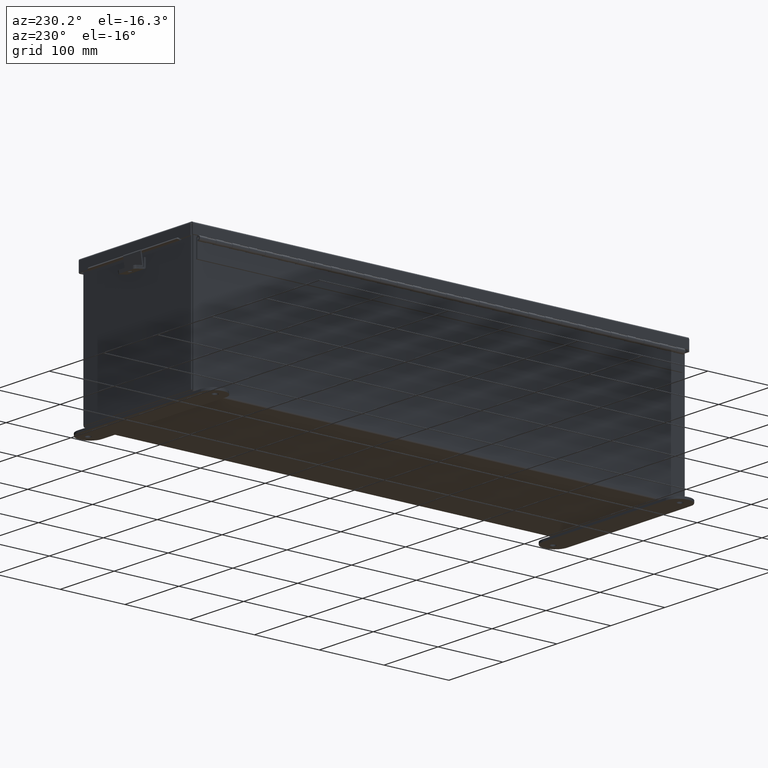
[diagram: clean part render]
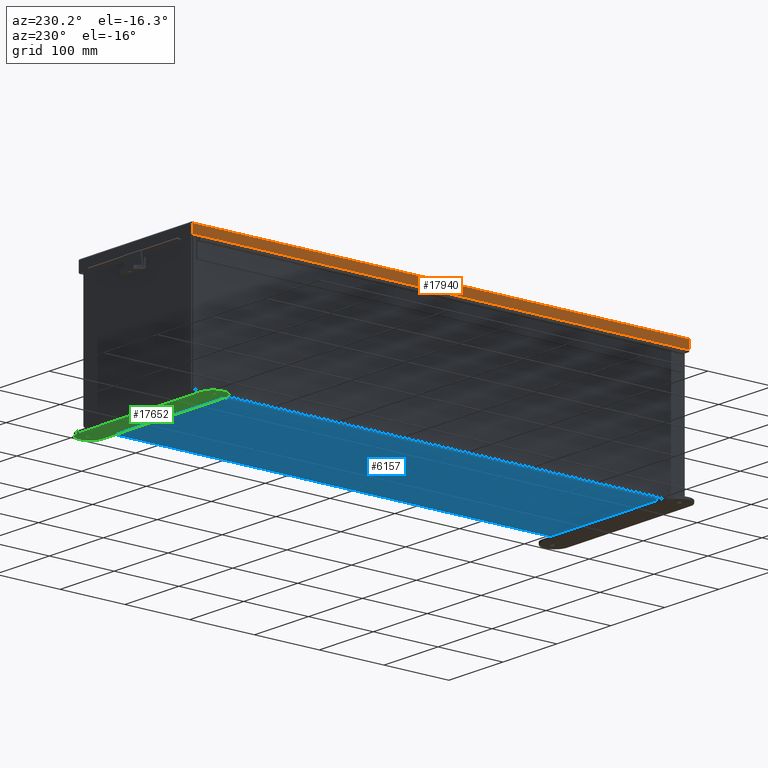
[diagram: same view with three faces highlighted in distinct colors, each labeled with its STEP entity id]
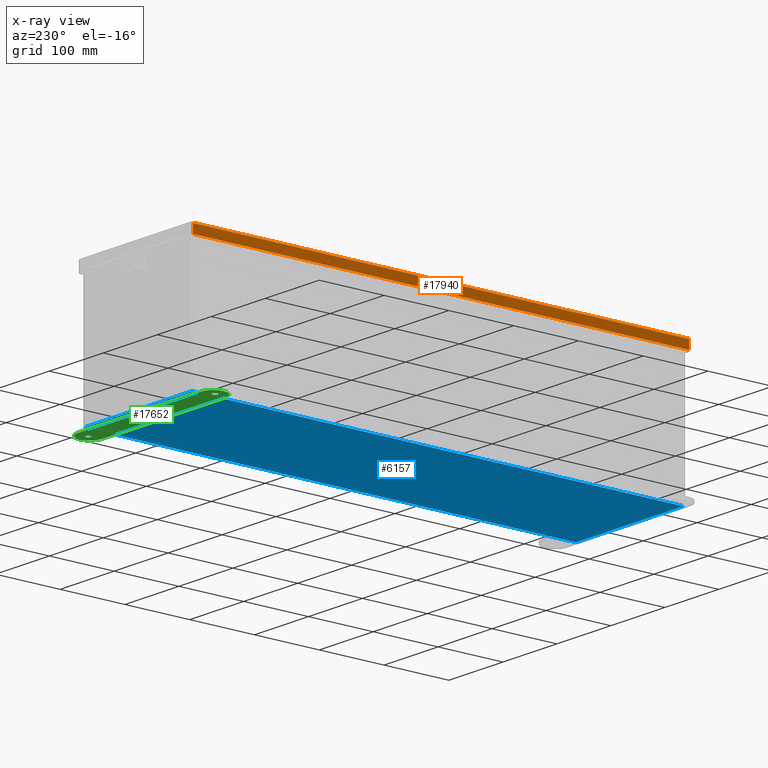
[diagram: x-ray of the same camera — body ghosted, the three highlighted faces saturated]
A machine part, auxiliary view with three faces highlighted in distinct colors.
The next image is the same camera in x-ray (body ghosted, the three faces saturated) — at least one of them is partly hidden behind the body in this view.
Their STEP definitions:

[orange] entity #17940 — the highlighted planar face has unit normal (1, -0, 0).
#395 = CARTESIAN_POINT ( 'NONE',  ( 4.156250000000014200, -15.07447893218816200, 0.01300000000000010700 ) ) ;
#506 = DIRECTION ( 'NONE',  ( -1.235011063668327800E-029, -1.000000000000000000, -6.034785924940740300E-029 ) ) ;
#849 = CARTESIAN_POINT ( 'NONE',  ( 4.156250000000021300, -15.07447893218816000, 0.5503000000000010100 ) ) ;
#851 = FACE_OUTER_BOUND ( 'NONE', #12337, .T. ) ;
#1150 = VERTEX_POINT ( 'NONE', #395 ) ;
#3848 = LINE ( 'NONE', #5018, #11658 ) ;
#4127 = DIRECTION ( 'NONE',  ( 3.971430846686186800E-015, 6.022459973296638500E-029, 1.000000000000000000 ) ) ;
#5018 = CARTESIAN_POINT ( 'NONE',  ( 4.156250000000014200, -15.15625000000002500, 0.01300000000000010700 ) ) ;
#7528 = DIRECTION ( 'NONE',  ( 3.971430846686186800E-015, 6.022459973296637300E-029, 1.000000000000000000 ) ) ;
#7607 = VECTOR ( 'NONE', #19994, 39.37007874015748100 ) ;
#8216 = ORIENTED_EDGE ( 'NONE', *, *, #16933, .T. ) ;
#9397 = VERTEX_POINT ( 'NONE', #17868 ) ;
#9565 = ORIENTED_EDGE ( 'NONE', *, *, #16741, .F. ) ;
#11658 = VECTOR ( 'NONE', #506, 39.37007874015748100 ) ;
#12311 = LINE ( 'NONE', #19956, #7607 ) ;
#12337 = EDGE_LOOP ( 'NONE', ( #9565, #8216, #24992, #12559 ) ) ;
#12559 = ORIENTED_EDGE ( 'NONE', *, *, #16825, .F. ) ;
#15993 = VECTOR ( 'NONE', #17571, 39.37007874015748100 ) ;
#16741 = EDGE_CURVE ( 'NONE', #9397, #1150, #3848, .T. ) ;
#16825 = EDGE_CURVE ( 'NONE', #1150, #21732, #20115, .T. ) ;
#16933 = EDGE_CURVE ( 'NONE', #9397, #20215, #23867, .T. ) ;
#16976 = EDGE_CURVE ( 'NONE', #20215, #21732, #12311, .T. ) ;
#17571 = DIRECTION ( 'NONE',  ( 3.971430846686186800E-015, 6.022459973296638500E-029, 1.000000000000000000 ) ) ;
#17791 = CARTESIAN_POINT ( 'NONE',  ( 4.156250000000014200, -15.07447893218816000, 0.0000000000000000000 ) ) ;
#17868 = CARTESIAN_POINT ( 'NONE',  ( 4.156250000000014200, 15.07447893218810500, 0.01300000000000010700 ) ) ;
#17940 = ADVANCED_FACE ( 'NONE', ( #851 ), #20260, .F. ) ;
#17978 = CARTESIAN_POINT ( 'NONE',  ( 4.156250000000021300, 15.07447893218810500, 0.5502999999999999000 ) ) ;
#18592 = AXIS2_PLACEMENT_3D ( 'NONE', #24273, #19466, #7528 ) ;
#18874 = CARTESIAN_POINT ( 'NONE',  ( 4.156250000000014200, 15.07447893218810500, -1.639108796198557900E-014 ) ) ;
#19466 = DIRECTION ( 'NONE',  ( -1.000000000000000000, -1.286555557391726600E-029, 3.971430846686186800E-015 ) ) ;
#19956 = CARTESIAN_POINT ( 'NONE',  ( 4.156250000000021300, 1.067128122525102800E-018, 0.5502999999999999000 ) ) ;
#19994 = DIRECTION ( 'NONE',  ( -1.235011063668327800E-029, -1.000000000000000000, -6.034785924940740300E-029 ) ) ;
#20115 = LINE ( 'NONE', #17791, #15993 ) ;
#20215 = VERTEX_POINT ( 'NONE', #17978 ) ;
#20260 = PLANE ( 'NONE',  #18592 ) ;
#21078 = VECTOR ( 'NONE', #4127, 39.37007874015748100 ) ;
#21732 = VERTEX_POINT ( 'NONE', #849 ) ;
#23867 = LINE ( 'NONE', #18874, #21078 ) ;
#24273 = CARTESIAN_POINT ( 'NONE',  ( 4.156250000000014200, 5.869204673888065100E-018, -1.748382715945128500E-014 ) ) ;
#24992 = ORIENTED_EDGE ( 'NONE', *, *, #16976, .T. ) ;

[blue] entity #6157 — the highlighted planar face has unit normal (0, 0, -1).
#33 = LINE ( 'NONE', #22793, #24389 ) ;
#286 = EDGE_LOOP ( 'NONE', ( #6733, #1319, #24756, #17747 ) ) ;
#662 = VECTOR ( 'NONE', #24526, 39.37007874015748100 ) ;
#885 = VERTEX_POINT ( 'NONE', #19577 ) ;
#1319 = ORIENTED_EDGE ( 'NONE', *, *, #22623, .T. ) ;
#3667 = CARTESIAN_POINT ( 'NONE',  ( 0.0000000000000000000, 0.0000000000000000000, -0.07470000000000000300 ) ) ;
#3780 = PLANE ( 'NONE',  #9256 ) ;
#4120 = VERTEX_POINT ( 'NONE', #24719 ) ;
#5991 = LINE ( 'NONE', #7638, #16534 ) ;
#6157 = ADVANCED_FACE ( 'NONE', ( #20437 ), #3780, .T. ) ;
#6733 = ORIENTED_EDGE ( 'NONE', *, *, #22582, .F. ) ;
#7638 = CARTESIAN_POINT ( 'NONE',  ( -3.912300000000000100, -14.92530000000000200, -0.07469999999999966900 ) ) ;
#7856 = VERTEX_POINT ( 'NONE', #17435 ) ;
#8730 = LINE ( 'NONE', #16435, #14061 ) ;
#9256 = AXIS2_PLACEMENT_3D ( 'NONE', #3667, #10772, #14609 ) ;
#9456 = CARTESIAN_POINT ( 'NONE',  ( -4.000000000000000900, -14.92530000000000200, -0.07470000000000000300 ) ) ;
#10772 = DIRECTION ( 'NONE',  ( 0.0000000000000000000, 0.0000000000000000000, -1.000000000000000000 ) ) ;
#12823 = VERTEX_POINT ( 'NONE', #23384 ) ;
#14061 = VECTOR ( 'NONE', #22538, 39.37007874015748100 ) ;
#14609 = DIRECTION ( 'NONE',  ( -1.000000000000000000, 0.0000000000000000000, -0.0000000000000000000 ) ) ;
#16435 = CARTESIAN_POINT ( 'NONE',  ( 3.912299999999999200, 14.92529999999999800, -0.07470000000000048800 ) ) ;
#16534 = VECTOR ( 'NONE', #24706, 39.37007874015748100 ) ;
#17435 = CARTESIAN_POINT ( 'NONE',  ( -3.912300000000000100, 14.92529999999999800, -0.07470000000000000300 ) ) ;
#17747 = ORIENTED_EDGE ( 'NONE', *, *, #22691, .T. ) ;
#19577 = CARTESIAN_POINT ( 'NONE',  ( -3.912300000000000100, -14.92529999999999800, -0.07469999999999966900 ) ) ;
#20437 = FACE_OUTER_BOUND ( 'NONE', #286, .T. ) ;
#22538 = DIRECTION ( 'NONE',  ( -0.0000000000000000000, -1.000000000000000000, -0.0000000000000000000 ) ) ;
#22553 = LINE ( 'NONE', #9456, #662 ) ;
#22582 = EDGE_CURVE ( 'NONE', #12823, #7856, #33, .T. ) ;
#22623 = EDGE_CURVE ( 'NONE', #12823, #4120, #8730, .T. ) ;
#22688 = EDGE_CURVE ( 'NONE', #885, #4120, #22553, .T. ) ;
#22691 = EDGE_CURVE ( 'NONE', #885, #7856, #5991, .T. ) ;
#22793 = CARTESIAN_POINT ( 'NONE',  ( -4.000000000000000900, 14.92529999999999800, -0.07470000000000000300 ) ) ;
#23384 = CARTESIAN_POINT ( 'NONE',  ( 3.912299999999999200, 14.92529999999999600, -0.07470000000000048800 ) ) ;
#24389 = VECTOR ( 'NONE', #25869, 39.37007874015748100 ) ;
#24526 = DIRECTION ( 'NONE',  ( 1.000000000000000000, 0.0000000000000000000, 0.0000000000000000000 ) ) ;
#24706 = DIRECTION ( 'NONE',  ( -0.0000000000000000000, 1.000000000000000000, -0.0000000000000000000 ) ) ;
#24719 = CARTESIAN_POINT ( 'NONE',  ( 3.912299999999999200, -14.92530000000000200, -0.07470000000000000300 ) ) ;
#24756 = ORIENTED_EDGE ( 'NONE', *, *, #22688, .F. ) ;
#25869 = DIRECTION ( 'NONE',  ( -1.000000000000000000, -0.0000000000000000000, -0.0000000000000000000 ) ) ;

[green] entity #17652 — the highlighted planar face has unit normal (0, 0, 1).
#24 = DIRECTION ( 'NONE',  ( 0.0000000000000000000, 0.0000000000000000000, -1.000000000000000000 ) ) ;
#83 = EDGE_CURVE ( 'NONE', #2448, #1467, #21524, .T. ) ;
#158 = CARTESIAN_POINT ( 'NONE',  ( 4.499999999999999100, 1.162094064949613600, 0.0000000000000000000 ) ) ;
#485 = AXIS2_PLACEMENT_3D ( 'NONE', #7346, #14068, #24052 ) ;
#772 = EDGE_CURVE ( 'NONE', #24703, #1525, #18986, .T. ) ;
#807 = PLANE ( 'NONE',  #1285 ) ;
#1134 = AXIS2_PLACEMENT_3D ( 'NONE', #23651, #10969, #23872 ) ;
#1272 = EDGE_LOOP ( 'NONE', ( #21929, #17913 ) ) ;
#1285 = AXIS2_PLACEMENT_3D ( 'NONE', #4061, #4717, #17735 ) ;
#1467 = VERTEX_POINT ( 'NONE', #21012 ) ;
#1515 = DIRECTION ( 'NONE',  ( -1.000000000000000000, 0.0000000000000000000, 0.0000000000000000000 ) ) ;
#1525 = VERTEX_POINT ( 'NONE', #17297 ) ;
#1644 = CARTESIAN_POINT ( 'NONE',  ( -4.499999999999999100, 1.162094064949611600, 0.0000000000000000000 ) ) ;
#1688 = AXIS2_PLACEMENT_3D ( 'NONE', #23813, #23600, #23715 ) ;
#2142 = EDGE_CURVE ( 'NONE', #1525, #9885, #13882, .T. ) ;
#2436 = EDGE_CURVE ( 'NONE', #9885, #23066, #12399, .T. ) ;
#2448 = VERTEX_POINT ( 'NONE', #7932 ) ;
#2478 = EDGE_CURVE ( 'NONE', #23066, #22694, #12257, .T. ) ;
#2779 = EDGE_CURVE ( 'NONE', #22694, #24703, #10886, .T. ) ;
#2783 = EDGE_CURVE ( 'NONE', #1467, #2448, #10767, .T. ) ;
#3065 = EDGE_CURVE ( 'NONE', #23657, #15520, #9447, .T. ) ;
#3571 = DIRECTION ( 'NONE',  ( 0.0000000000000000000, 0.0000000000000000000, 1.000000000000000000 ) ) ;
#3623 = FACE_OUTER_BOUND ( 'NONE', #25729, .T. ) ;
#4061 = CARTESIAN_POINT ( 'NONE',  ( 4.499999999999999100, 0.4120940649496132600, 0.0000000000000000000 ) ) ;
#4717 = DIRECTION ( 'NONE',  ( 0.0000000000000000000, 0.0000000000000000000, -1.000000000000000000 ) ) ;
#6283 = CARTESIAN_POINT ( 'NONE',  ( 4.499999999999999100, 0.4120940649496132600, 0.0000000000000000000 ) ) ;
#6368 = ORIENTED_EDGE ( 'NONE', *, *, #3065, .T. ) ;
#6878 = DIRECTION ( 'NONE',  ( -1.000000000000000000, -1.214154663850783900E-016, 0.0000000000000000000 ) ) ;
#7346 = CARTESIAN_POINT ( 'NONE',  ( 4.499999999999999100, 0.4120940649496132600, 0.0000000000000000000 ) ) ;
#7840 = CARTESIAN_POINT ( 'NONE',  ( 4.468500000000000600, 0.4120940649496089300, 0.0000000000000000000 ) ) ;
#7932 = CARTESIAN_POINT ( 'NONE',  ( -4.781499999999999400, 0.4120940649496089300, 0.0000000000000000000 ) ) ;
#9447 = CIRCLE ( 'NONE', #1134, 0.1564999999999992800 ) ;
#9472 = AXIS2_PLACEMENT_3D ( 'NONE', #14663, #13787, #13193 ) ;
#9885 = VERTEX_POINT ( 'NONE', #158 ) ;
#10739 = VECTOR ( 'NONE', #15289, 39.37007874015748100 ) ;
#10767 = CIRCLE ( 'NONE', #20087, 0.1564999999999992800 ) ;
#10886 = LINE ( 'NONE', #13472, #10739 ) ;
#10969 = DIRECTION ( 'NONE',  ( 0.0000000000000000000, 0.0000000000000000000, -1.000000000000000000 ) ) ;
#11216 = ORIENTED_EDGE ( 'NONE', *, *, #2436, .T. ) ;
#11707 = ORIENTED_EDGE ( 'NONE', *, *, #2142, .T. ) ;
#11977 = CARTESIAN_POINT ( 'NONE',  ( 4.625000000000000000, 0.4120940649496089300, 0.0000000000000000000 ) ) ;
#12257 = CIRCLE ( 'NONE', #9472, 0.7499999999999998900 ) ;
#12332 = VECTOR ( 'NONE', #6878, 39.37007874015748100 ) ;
#12399 = LINE ( 'NONE', #1644, #12332 ) ;
#12546 = CARTESIAN_POINT ( 'NONE',  ( -4.499999999999999100, 1.162094064949611600, 0.0000000000000000000 ) ) ;
#13193 = DIRECTION ( 'NONE',  ( 1.000000000000000000, 0.0000000000000000000, 0.0000000000000000000 ) ) ;
#13277 = AXIS2_PLACEMENT_3D ( 'NONE', #6283, #3571, #1515 ) ;
#13472 = CARTESIAN_POINT ( 'NONE',  ( -4.499999999999999100, -0.3379059350503871900, 0.0000000000000000000 ) ) ;
#13787 = DIRECTION ( 'NONE',  ( 0.0000000000000000000, 0.0000000000000000000, 1.000000000000000000 ) ) ;
#13882 = CIRCLE ( 'NONE', #13277, 0.7500000000000010000 ) ;
#13961 = DIRECTION ( 'NONE',  ( -1.000000000000000000, 0.0000000000000000000, 0.0000000000000000000 ) ) ;
#14068 = DIRECTION ( 'NONE',  ( 0.0000000000000000000, 0.0000000000000000000, 1.000000000000000000 ) ) ;
#14208 = FACE_BOUND ( 'NONE', #1272, .T. ) ;
#14215 = CIRCLE ( 'NONE', #21807, 0.1564999999999992800 ) ;
#14663 = CARTESIAN_POINT ( 'NONE',  ( -4.499999999999999100, 0.4120940649496132600, 0.0000000000000000000 ) ) ;
#15289 = DIRECTION ( 'NONE',  ( 1.000000000000000000, -1.214154663850783900E-016, 0.0000000000000000000 ) ) ;
#15520 = VERTEX_POINT ( 'NONE', #24473 ) ;
#15762 = ORIENTED_EDGE ( 'NONE', *, *, #2478, .T. ) ;
#16496 = DIRECTION ( 'NONE',  ( 0.0000000000000000000, 0.0000000000000000000, 1.000000000000000000 ) ) ;
#16518 = CARTESIAN_POINT ( 'NONE',  ( 4.499999999999999100, -0.3379059350503894100, 0.0000000000000000000 ) ) ;
#17297 = CARTESIAN_POINT ( 'NONE',  ( 5.250000000000000900, 0.4120940649496132600, 0.0000000000000000000 ) ) ;
#17631 = CARTESIAN_POINT ( 'NONE',  ( -4.625000000000000000, 0.4120940649496089300, 0.0000000000000000000 ) ) ;
#17652 = ADVANCED_FACE ( 'NONE', ( #3623, #14208, #18927 ), #807, .F. ) ;
#17735 = DIRECTION ( 'NONE',  ( -1.000000000000000000, 0.0000000000000000000, 0.0000000000000000000 ) ) ;
#17913 = ORIENTED_EDGE ( 'NONE', *, *, #83, .F. ) ;
#18633 = ORIENTED_EDGE ( 'NONE', *, *, #772, .T. ) ;
#18888 = EDGE_LOOP ( 'NONE', ( #21369, #6368 ) ) ;
#18927 = FACE_BOUND ( 'NONE', #18888, .T. ) ;
#18986 = CIRCLE ( 'NONE', #485, 0.7500000000000010000 ) ;
#20087 = AXIS2_PLACEMENT_3D ( 'NONE', #17631, #16496, #21004 ) ;
#21004 = DIRECTION ( 'NONE',  ( 1.000000000000000000, 0.0000000000000000000, 0.0000000000000000000 ) ) ;
#21012 = CARTESIAN_POINT ( 'NONE',  ( -4.468500000000000600, 0.4120940649496089300, 0.0000000000000000000 ) ) ;
#21369 = ORIENTED_EDGE ( 'NONE', *, *, #25770, .T. ) ;
#21524 = CIRCLE ( 'NONE', #1688, 0.1564999999999992800 ) ;
#21807 = AXIS2_PLACEMENT_3D ( 'NONE', #11977, #24, #13961 ) ;
#21929 = ORIENTED_EDGE ( 'NONE', *, *, #2783, .F. ) ;
#22694 = VERTEX_POINT ( 'NONE', #24966 ) ;
#23066 = VERTEX_POINT ( 'NONE', #12546 ) ;
#23600 = DIRECTION ( 'NONE',  ( 0.0000000000000000000, 0.0000000000000000000, 1.000000000000000000 ) ) ;
#23651 = CARTESIAN_POINT ( 'NONE',  ( 4.625000000000000000, 0.4120940649496089300, 0.0000000000000000000 ) ) ;
#23657 = VERTEX_POINT ( 'NONE', #7840 ) ;
#23715 = DIRECTION ( 'NONE',  ( 1.000000000000000000, 0.0000000000000000000, 0.0000000000000000000 ) ) ;
#23813 = CARTESIAN_POINT ( 'NONE',  ( -4.625000000000000000, 0.4120940649496089300, 0.0000000000000000000 ) ) ;
#23872 = DIRECTION ( 'NONE',  ( -1.000000000000000000, 0.0000000000000000000, 0.0000000000000000000 ) ) ;
#24052 = DIRECTION ( 'NONE',  ( -1.000000000000000000, 0.0000000000000000000, 0.0000000000000000000 ) ) ;
#24069 = ORIENTED_EDGE ( 'NONE', *, *, #2779, .T. ) ;
#24473 = CARTESIAN_POINT ( 'NONE',  ( 4.781499999999999400, 0.4120940649496089300, 0.0000000000000000000 ) ) ;
#24703 = VERTEX_POINT ( 'NONE', #16518 ) ;
#24966 = CARTESIAN_POINT ( 'NONE',  ( -4.499999999999999100, -0.3379059350503871900, 0.0000000000000000000 ) ) ;
#25729 = EDGE_LOOP ( 'NONE', ( #18633, #11707, #11216, #15762, #24069 ) ) ;
#25770 = EDGE_CURVE ( 'NONE', #15520, #23657, #14215, .T. ) ;